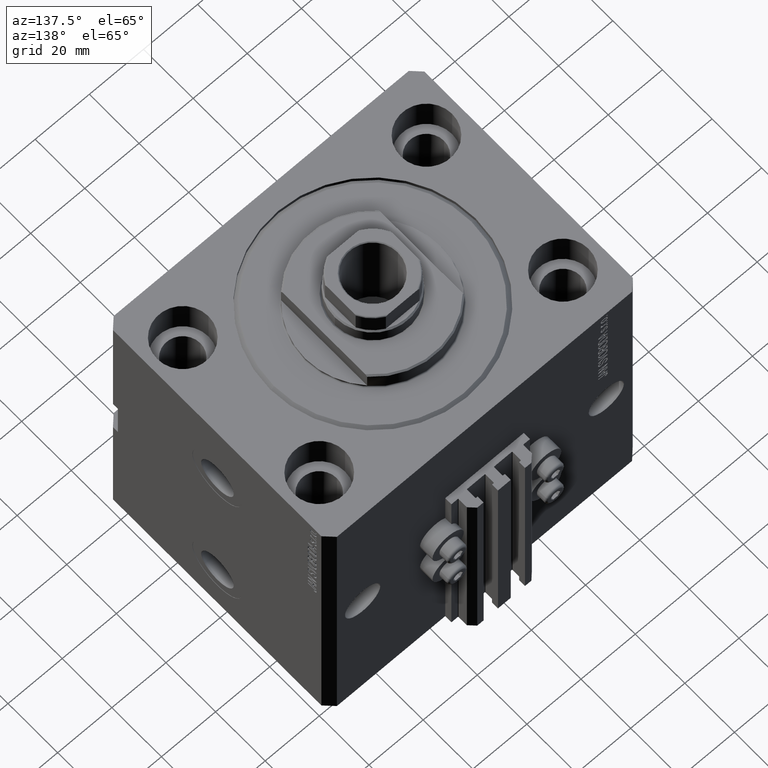
[diagram: clean part render]
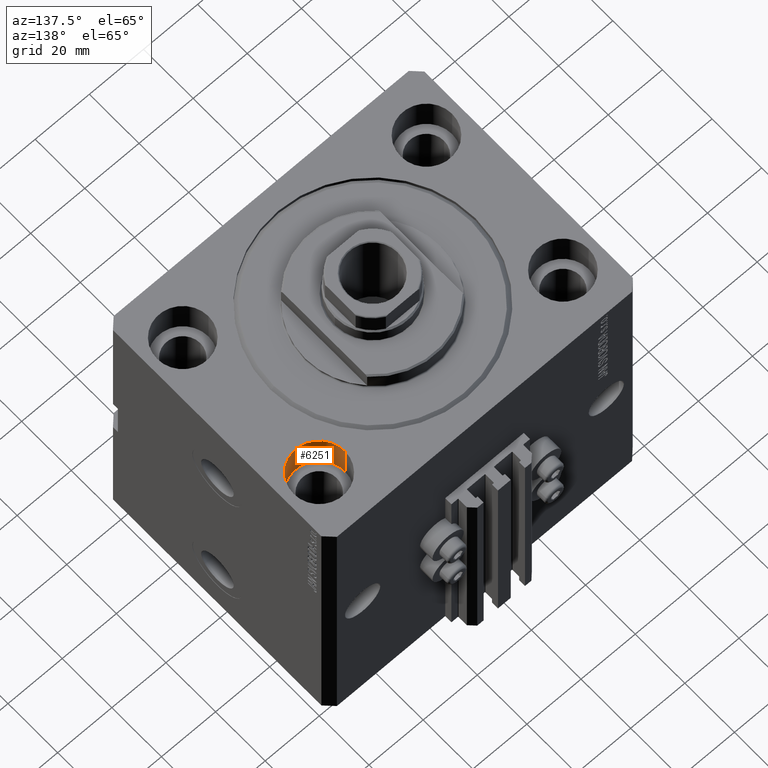
[diagram: same view with one face highlighted and labeled with its STEP entity id]
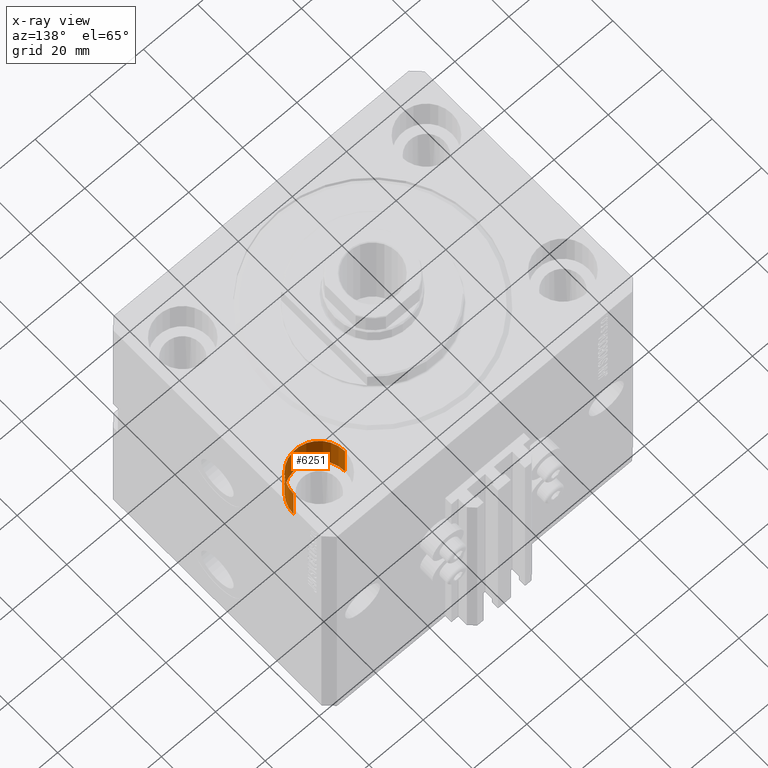
[diagram: x-ray of the same camera — body ghosted, the highlighted face saturated]
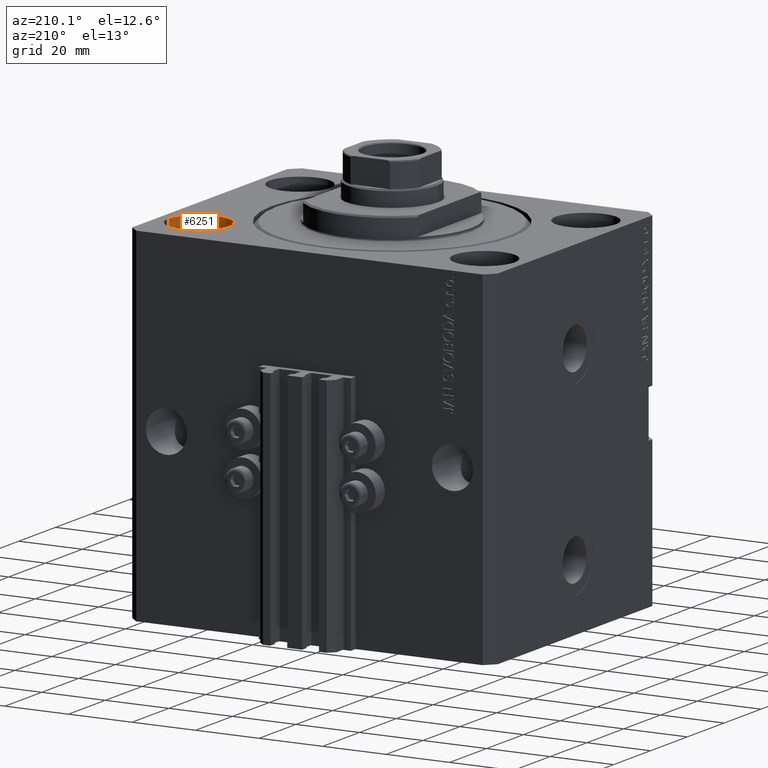
[diagram: same view with one face highlighted and labeled with its STEP entity id]
A machine part, auxiliary view. The second image highlights one B-rep face of the part: STEP entity #6251.
The next image is the same camera in x-ray: the body ghosted, the highlighted face saturated — about 0% of this face is hidden behind the body in this view.
A second angle (auxiliary view) of the same face is appended — the face is thin or edge-on in the first view.
In plain terms, the highlighted cylindrical surface (edge-blend (fillet) strip) has radius 9.5 mm, axis along (0, 0, 1).
Its self-contained STEP definition (entity closure, byte-faithful):
#517 = ORIENTED_EDGE ( 'NONE', *, *, #8337, .T. ) ;
#1547 = ORIENTED_EDGE ( 'NONE', *, *, #25669, .F. ) ;
#2243 = CARTESIAN_POINT ( 'NONE',  ( 54.50000000000000000, 27.50000000000001776, 0.000000000000000000 ) ) ;
#3336 = CARTESIAN_POINT ( 'NONE',  ( 45.00000000000000000, 27.50000000000001776, 0.000000000000000000 ) ) ;
#3560 = DIRECTION ( 'NONE',  ( -0.000000000000000000, -0.000000000000000000, 1.000000000000000000 ) ) ;
#4205 = VERTEX_POINT ( 'NONE', #44586 ) ;
#6251 = ADVANCED_FACE ( 'NONE', ( #11128 ), #40735, .F. ) ;
#8337 = EDGE_CURVE ( 'NONE', #20437, #8769, #22471, .T. ) ;
#8769 = VERTEX_POINT ( 'NONE', #2243 ) ;
#11128 = FACE_OUTER_BOUND ( 'NONE', #32441, .T. ) ;
#14440 = ORIENTED_EDGE ( 'NONE', *, *, #40302, .T. ) ;
#14910 = VECTOR ( 'NONE', #48452, 1000.000000000000000 ) ;
#17995 = CARTESIAN_POINT ( 'NONE',  ( 35.50000000000000000, 27.50000000000001776, -13.00000000000000000 ) ) ;
#20437 = VERTEX_POINT ( 'NONE', #21032 ) ;
#21032 = CARTESIAN_POINT ( 'NONE',  ( 35.50000000000000000, 27.50000000000001776, 0.000000000000000000 ) ) ;
#22471 = CIRCLE ( 'NONE', #28813, 9.500000000000001776 ) ;
#24674 = CARTESIAN_POINT ( 'NONE',  ( 45.00000000000000000, 27.50000000000001776, -13.00000000000000000 ) ) ;
#25669 = EDGE_CURVE ( 'NONE', #4205, #8769, #28571, .T. ) ;
#26281 = CARTESIAN_POINT ( 'NONE',  ( 45.00000000000000000, 27.50000000000001776, -13.00000000000000000 ) ) ;
#28571 = LINE ( 'NONE', #44241, #14910 ) ;
#28645 = DIRECTION ( 'NONE',  ( 1.000000000000000000, 0.000000000000000000, 0.000000000000000000 ) ) ;
#28813 = AXIS2_PLACEMENT_3D ( 'NONE', #3336, #48840, #29926 ) ;
#29926 = DIRECTION ( 'NONE',  ( 1.000000000000000000, 0.000000000000000000, 0.000000000000000000 ) ) ;
#30250 = DIRECTION ( 'NONE',  ( 1.000000000000000000, 0.000000000000000000, 0.000000000000000000 ) ) ;
#32441 = EDGE_LOOP ( 'NONE', ( #48566, #14440, #517, #1547 ) ) ;
#34338 = AXIS2_PLACEMENT_3D ( 'NONE', #26281, #41474, #30250 ) ;
#40302 = EDGE_CURVE ( 'NONE', #48500, #20437, #44840, .T. ) ;
#40735 = CYLINDRICAL_SURFACE ( 'NONE', #34338, 9.500000000000001776 ) ;
#40851 = VECTOR ( 'NONE', #3560, 1000.000000000000000 ) ;
#41474 = DIRECTION ( 'NONE',  ( -0.000000000000000000, -0.000000000000000000, 1.000000000000000000 ) ) ;
#41852 = CARTESIAN_POINT ( 'NONE',  ( 35.50000000000000000, 27.50000000000001776, -13.00000000000000000 ) ) ;
#42039 = EDGE_CURVE ( 'NONE', #48500, #4205, #47224, .T. ) ;
#44241 = CARTESIAN_POINT ( 'NONE',  ( 54.50000000000000000, 27.50000000000001776, -13.00000000000000000 ) ) ;
#44586 = CARTESIAN_POINT ( 'NONE',  ( 54.50000000000000000, 27.50000000000001776, -13.00000000000000000 ) ) ;
#44840 = LINE ( 'NONE', #41852, #40851 ) ;
#44854 = AXIS2_PLACEMENT_3D ( 'NONE', #24674, #48043, #28645 ) ;
#47224 = CIRCLE ( 'NONE', #44854, 9.500000000000001776 ) ;
#48043 = DIRECTION ( 'NONE',  ( 0.000000000000000000, 0.000000000000000000, 1.000000000000000000 ) ) ;
#48452 = DIRECTION ( 'NONE',  ( -0.000000000000000000, -0.000000000000000000, 1.000000000000000000 ) ) ;
#48500 = VERTEX_POINT ( 'NONE', #17995 ) ;
#48566 = ORIENTED_EDGE ( 'NONE', *, *, #42039, .F. ) ;
#48840 = DIRECTION ( 'NONE',  ( 0.000000000000000000, 0.000000000000000000, 1.000000000000000000 ) ) ;